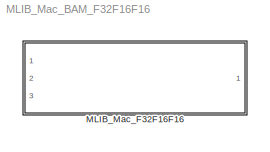
MODEL MLIB_Mac_BAM_F32F16F16
KIND model
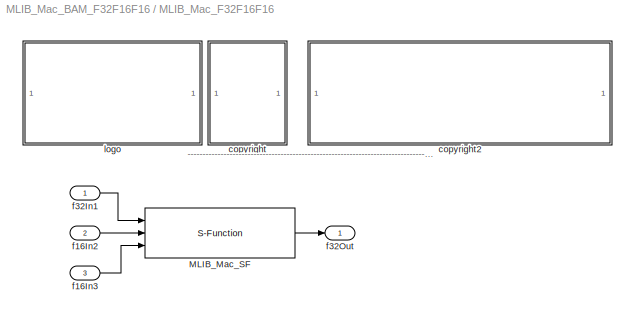
BLOCK [SubSystem] MLIB_Mac_F32F16F16
  Ports = [3, 1]
  RequestExecContextInheritance = off
  SID = 1
BLOCK [S-Function] MLIB_Mac_F32F16F16/MLIB_Mac_SF
  EnableBusSupport = off
  FunctionName = MLIB_Mac_SF_F32F16F16
  Ports = [3, 1]
  SID = 5
BLOCK [SubSystem] MLIB_Mac_F32F16F16/<copyright redacted>
  Ports = []
  RequestExecContextInheritance = off
  SID = 6
BLOCK [SubSystem] MLIB_Mac_F32F16F16/copyright2
  Ports = []
  RequestExecContextInheritance = off
  SID = 7
BLOCK [Inport] MLIB_Mac_F32F16F16/f16In2
  IconDisplay = Port number
  Port = 2
  SID = 3
BLOCK [Inport] MLIB_Mac_F32F16F16/f16In3
  IconDisplay = Port number
  Port = 3
  SID = 4
BLOCK [Inport] MLIB_Mac_F32F16F16/f32In1
  IconDisplay = Port number
  SID = 2
BLOCK [Outport] MLIB_Mac_F32F16F16/f32Out
  IconDisplay = Port number
  SID = 9
BLOCK [SubSystem] MLIB_Mac_F32F16F16/logo
  Ports = []
  RequestExecContextInheritance = off
  SID = 8
ANNOTATION MLIB_Mac_F32F16F16: ---------------------------------------------------------------------------------------------------------------------------------------------------------------------------------------------------
LINE MLIB_Mac_F32F16F16/MLIB_Mac_SF:1 -> MLIB_Mac_F32F16F16/f32Out:1
LINE MLIB_Mac_F32F16F16/f16In2:1 -> MLIB_Mac_F32F16F16/MLIB_Mac_SF:2
LINE MLIB_Mac_F32F16F16/f16In3:1 -> MLIB_Mac_F32F16F16/MLIB_Mac_SF:3
LINE MLIB_Mac_F32F16F16/f32In1:1 -> MLIB_Mac_F32F16F16/MLIB_Mac_SF:1
